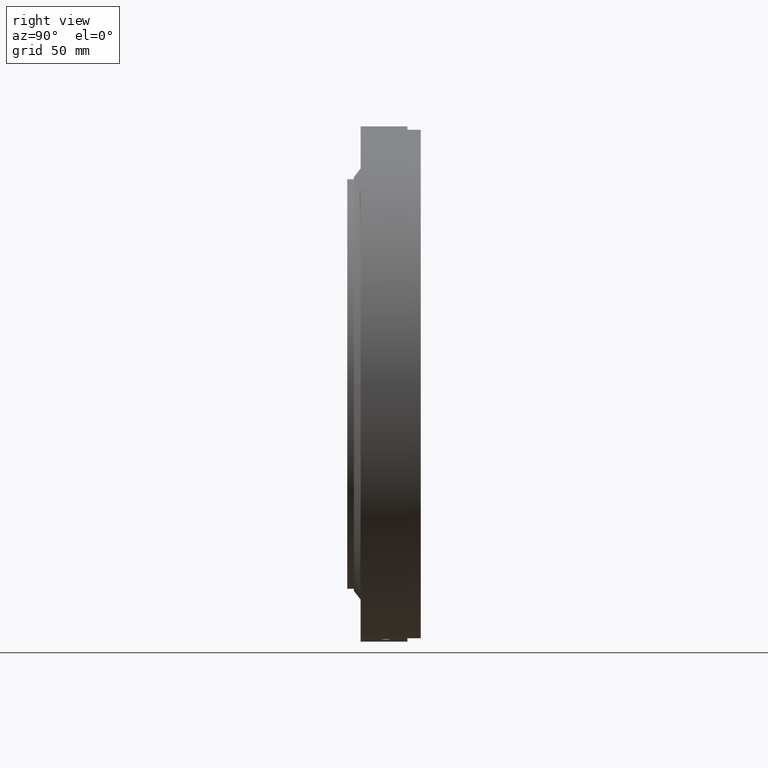
[diagram: clean part render]
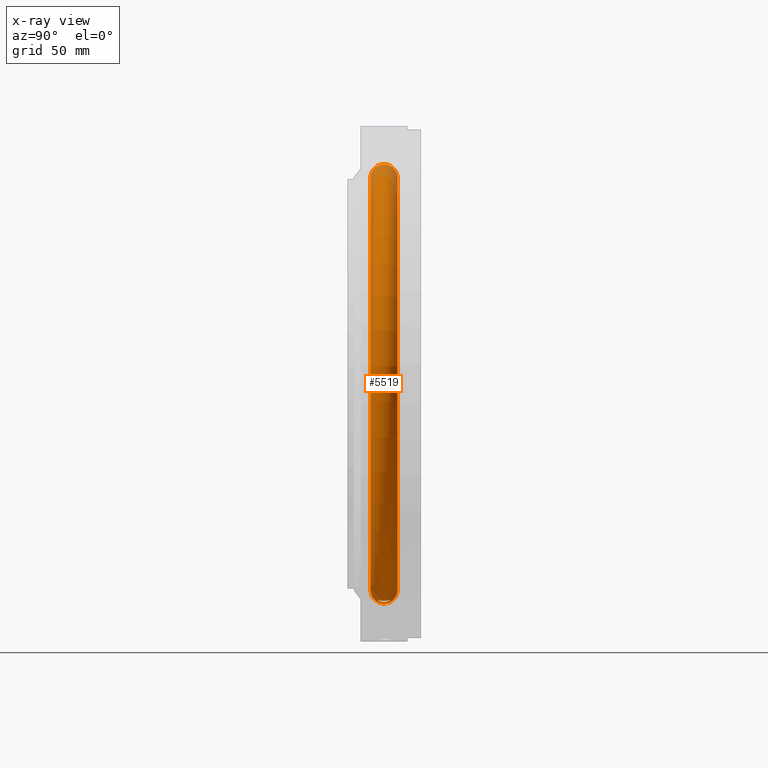
[diagram: x-ray — body ghosted, one internal face saturated and labeled with its STEP entity id]
A machine part, right view, then the same camera in x-ray: the body is ghosted and one INTERNAL B-rep face — a face not visible from any outside direction — is saturated and labeled: STEP entity #5519.
In plain terms, the highlighted toroidal blend (fillet) surface has major radius 154 mm and minor (blend) radius 10.125 mm.
Its self-contained STEP definition (entity closure, byte-faithful):
#285 = CARTESIAN_POINT ( 'NONE',  ( 25.87605939719990600, -0.2985636988969406800, -162.0723454974608400 ) ) ;
#996 = ORIENTED_EDGE ( 'NONE', *, *, #4820, .F. ) ;
#1200 = CARTESIAN_POINT ( 'NONE',  ( -1.182411667298308500E-015, 10.07424780070452500, 3.520161150767881700E-016 ) ) ;
#1833 = CARTESIAN_POINT ( 'NONE',  ( 16.95305564484528900, -2.490218217154930500E-009, -163.2470812275146800 ) ) ;
#1907 = CARTESIAN_POINT ( 'NONE',  ( -2.740827799648294300E-014, 5.381094727294103700E-015, -154.0000000000000000 ) ) ;
#1924 = ORIENTED_EDGE ( 'NONE', *, *, #8764, .F. ) ;
#2009 = CARTESIAN_POINT ( 'NONE',  ( 24.29488034255972200, -3.386912761860605400, -161.7296974445217200 ) ) ;
#2139 = EDGE_CURVE ( 'NONE', #16674, #15334, #10465, .T. ) ;
#2168 = AXIS2_PLACEMENT_3D ( 'NONE', #1200, #4241, #5100 ) ;
#2647 = CARTESIAN_POINT ( 'NONE',  ( 17.06286809722527700, -1.030836467049970600, -163.1838155458609400 ) ) ;
#2687 = CARTESIAN_POINT ( 'NONE',  ( 9.787333997533663200E-015, -10.07424780070453200, 155.0124999999999900 ) ) ;
#2693 = ORIENTED_EDGE ( 'NONE', *, *, #5965, .T. ) ;
#2900 = CARTESIAN_POINT ( 'NONE',  ( -2.758847852551826400E-014, -10.07424780070452100, -155.0124999999999900 ) ) ;
#3427 = CARTESIAN_POINT ( 'NONE',  ( 20.98511815232262700, -4.499910478885521300, -161.7144640029901300 ) ) ;
#3665 = CARTESIAN_POINT ( 'NONE',  ( 17.22627264879800200, -1.599160475621156400, -163.0916473051969100 ) ) ;
#3914 = CARTESIAN_POINT ( 'NONE',  ( 23.56296480472796200, -3.900347213197203000, -161.6370007688691100 ) ) ;
#4060 = CARTESIAN_POINT ( 'NONE',  ( 25.87605939720957300, -2.506746963913570900E-009, -162.0723454975341700 ) ) ;
#4079 = CARTESIAN_POINT ( 'NONE',  ( 25.72345742633690000, -1.174981209259698300, -162.0316729129656000 ) ) ;
#4241 = DIRECTION ( 'NONE',  ( 1.173697223544192200E-016, -1.000000000000000000, -3.494217355385783800E-017 ) ) ;
#4392 = CARTESIAN_POINT ( 'NONE',  ( 17.09748395767530800, -1.176673295688014200, -163.1640664003225500 ) ) ;
#4624 = CARTESIAN_POINT ( 'NONE',  ( 25.87605939721440500, 0.1492238133196937300, -162.0723454975708400 ) ) ;
#4636 = CARTESIAN_POINT ( 'NONE',  ( 20.12947164134699200, -4.346494329589879700, -161.8981901464832700 ) ) ;
#4762 = CARTESIAN_POINT ( 'NONE',  ( 17.17915245734804900, -1.460493076982188200, -163.1180023496384600 ) ) ;
#4820 = EDGE_CURVE ( 'NONE', #16674, #11333, #17006, .T. ) ;
#5006 = CARTESIAN_POINT ( 'NONE',  ( 16.98050067026604300, -0.5929083849119604100, -163.2310412415883400 ) ) ;
#5020 = CARTESIAN_POINT ( 'NONE',  ( 0.0000000000000000000, -0.0000000000000000000, 0.0000000000000000000 ) ) ;
#5078 = CARTESIAN_POINT ( 'NONE',  ( 21.87686209752731900, -4.470277461980961300, -161.6112313221221700 ) ) ;
#5100 = DIRECTION ( 'NONE',  ( 5.551115123125782700E-017, -3.357258561684007100E-017, 1.000000000000000000 ) ) ;
#5133 = CARTESIAN_POINT ( 'NONE',  ( 25.25136311684124000, -2.262074366697306000, -161.9151594362679100 ) ) ;
#5148 = CARTESIAN_POINT ( 'NONE',  ( 21.58205706642593600, -4.500089129923970300, -161.6357910759811300 ) ) ;
#5155 = CARTESIAN_POINT ( 'NONE',  ( 25.81380506178362200, 0.7444255377757166300, -162.0555897069715500 ) ) ;
#5175 = CARTESIAN_POINT ( 'NONE',  ( 25.84527613078836700, -0.5932326999813676300, -162.0639236970967800 ) ) ;
#5279 = CARTESIAN_POINT ( 'NONE',  ( 25.83699654909763400, 0.5975891206934413900, -162.0618137411020400 ) ) ;
#5312 = CARTESIAN_POINT ( 'NONE',  ( 25.39200746297243000, 2.011602077555792300, -161.9485492642412200 ) ) ;
#5470 = DIRECTION ( 'NONE',  ( 5.551115123125782700E-017, -3.494217355385783100E-017, 1.000000000000000000 ) ) ;
#5519 = ADVANCED_FACE ( 'NONE', ( #17157, #13988 ), #10406, .F. ) ;
#5792 = CARTESIAN_POINT ( 'NONE',  ( 17.51822200637467800, -2.266556568081994300, -162.9322720971586300 ) ) ;
#5965 = EDGE_CURVE ( 'NONE', #15334, #10200, #16090, .T. ) ;
#6344 = ORIENTED_EDGE ( 'NONE', *, *, #2139, .T. ) ;
#6663 = CARTESIAN_POINT ( 'NONE',  ( 24.71825293885289200, -2.976669158166189700, -161.8029076953275200 ) ) ;
#6682 = B_SPLINE_CURVE_WITH_KNOTS ( 'NONE', 3,
 ( #1833, #13722, #5006, #2647, #4392, #4762, #3665, #6806, #5792, #9905, #7931, #14365, #14097, #16640, #12006, #13624, #12960, #4636, #14370, #7300, #3427, #5148, #5078, #14494, #14464, #14017, #3914, #11696, #2009, #6663, #12919, #5133, #8687, #15506, #4079, #5175, #285, #4060 ),
 .UNSPECIFIED., .F., .F.,
 ( 4, 2, 2, 2, 2, 2, 2, 2, 2, 2, 2, 2, 2, 2, 2, 2, 2, 2, 4 ),
 ( 0.01080634631578504900, 0.01169607692530901300, 0.01214094223007099900, 0.01258580753483298400, 0.01347553814435693500, 0.01436526875388088500, 0.01525499936340483600, 0.01614472997292878600, 0.01658959527769076500, 0.01703446058245274400, 0.01792419119197669400, 0.01881392180150064400, 0.01970365241102459500, 0.02059338302054854500, 0.02148311363007249200, 0.02237284423959644600, 0.02326257484912039700, 0.02415230545864434700, 0.02504203606816829800 ),
 .UNSPECIFIED. ) ;
#6806 = CARTESIAN_POINT ( 'NONE',  ( 17.38604608230626500, -2.005828942567127600, -163.0036001129518300 ) ) ;
#7093 = CARTESIAN_POINT ( 'NONE',  ( 16.95305564484528900, -2.490218217154930500E-009, -163.2470812275146800 ) ) ;
#7300 = CARTESIAN_POINT ( 'NONE',  ( 20.69395267895242400, -4.469836906715329400, -161.7671698362692900 ) ) ;
#7839 = CIRCLE ( 'NONE', #15675, 10.12499999999999800 ) ;
#7900 = AXIS2_PLACEMENT_3D ( 'NONE', #8096, #10257, #10238 ) ;
#7931 = CARTESIAN_POINT ( 'NONE',  ( 18.00264911365350100, -2.977903899250928800, -162.6866817634779400 ) ) ;
#8096 = CARTESIAN_POINT ( 'NONE',  ( 1.182411667298308700E-015, -10.07424780070452600, -3.520161150767882200E-016 ) ) ;
#8687 = CARTESIAN_POINT ( 'NONE',  ( 25.39520870186220900, -2.005003983624607900, -161.9493245740047200 ) ) ;
#8764 = EDGE_CURVE ( 'NONE', #11333, #10200, #7839, .T. ) ;
#8800 = EDGE_CURVE ( 'NONE', #8987, #12305, #6682, .T. ) ;
#8987 = VERTEX_POINT ( 'NONE', #7093 ) ;
#9289 = CARTESIAN_POINT ( 'NONE',  ( 8.548717289613705400E-015, -5.381094727294106100E-015, 154.0000000000000000 ) ) ;
#9905 = CARTESIAN_POINT ( 'NONE',  ( 17.82764347707782800, -2.753871851619472000, -162.7732513768679000 ) ) ;
#10150 = EDGE_LOOP ( 'NONE', ( #996, #6344, #2693, #1924 ) ) ;
#10200 = VERTEX_POINT ( 'NONE', #2687 ) ;
#10238 = DIRECTION ( 'NONE',  ( 5.551115123125782700E-017, -3.357258561684007100E-017, 1.000000000000000000 ) ) ;
#10257 = DIRECTION ( 'NONE',  ( 1.173697223544192200E-016, -1.000000000000000000, -3.494217355385783800E-017 ) ) ;
#10406 = TOROIDAL_SURFACE ( 'NONE', #16680, 154.0000000000000000, 10.12499999999999800 ) ;
#10465 = CIRCLE ( 'NONE', #12097, 10.12499999999999500 ) ;
#10491 = CARTESIAN_POINT ( 'NONE',  ( 19.07054636527337300, 3.897677714221700700, -162.2294745121159000 ) ) ;
#10876 = DIRECTION ( 'NONE',  ( -1.173697223544191400E-016, 1.000000000000000000, 0.0000000000000000000 ) ) ;
#11062 = EDGE_CURVE ( 'NONE', #12305, #8987, #12958, .T. ) ;
#11268 = CARTESIAN_POINT ( 'NONE',  ( 25.87605939720957300, -2.506746963913570900E-009, -162.0723454975341700 ) ) ;
#11277 = DIRECTION ( 'NONE',  ( 1.173697223544192200E-016, -1.000000000000000000, -3.494217355385783800E-017 ) ) ;
#11333 = VERTEX_POINT ( 'NONE', #15096 ) ;
#11696 = CARTESIAN_POINT ( 'NONE',  ( 24.06244237525720900, -3.573124532905712900, -161.6947696468574500 ) ) ;
#11938 = CARTESIAN_POINT ( 'NONE',  ( 25.86816841580273500, 0.3002676704841263900, -162.0702038742973600 ) ) ;
#12006 = CARTESIAN_POINT ( 'NONE',  ( 19.32205919350263900, -4.038641065020975400, -162.1384795416508700 ) ) ;
#12097 = AXIS2_PLACEMENT_3D ( 'NONE', #1907, #14561, #14604 ) ;
#12305 = VERTEX_POINT ( 'NONE', #11268 ) ;
#12429 = ORIENTED_EDGE ( 'NONE', *, *, #11062, .F. ) ;
#12919 = CARTESIAN_POINT ( 'NONE',  ( 24.91215600653698900, -2.749441724439066500, -161.8417441383665800 ) ) ;
#12958 = B_SPLINE_CURVE_WITH_KNOTS ( 'NONE', 3,
 ( #16243, #4624, #11938, #5279, #5155, #14951, #14931, #5312, #15026, #15011, #14969, #15075, #15051, #15034, #15193, #15177, #15091, #15232, #15218, #15139, #15394, #15328, #15291, #15449, #15439, #15419, #10491, #15781, #15672, #15648, #15845, #16116, #16100, #15984, #15903, #15879 ),
 .UNSPECIFIED., .F., .F.,
 ( 4, 2, 2, 2, 2, 2, 2, 2, 2, 2, 2, 2, 2, 2, 2, 2, 2, 4 ),
 ( 0.02504203606816829800, 0.02548672843437357200, 0.02593142080057884300, 0.02682080553298939200, 0.02771019026539993400, 0.02859957499781048300, 0.02948895973022102500, 0.03037834446263157400, 0.03126772919504211500, 0.03171242156124739300, 0.03215711392745266400, 0.03304649865986322000, 0.03393588339227377600, 0.03482526812468433200, 0.03571465285709488800, 0.03749342232191599900, 0.03838280705432654800, 0.03927219178673710400 ),
 .UNSPECIFIED. ) ;
#12960 = CARTESIAN_POINT ( 'NONE',  ( 19.85376694073979600, -4.259888414951867700, -161.9731990771021800 ) ) ;
#13257 = CARTESIAN_POINT ( 'NONE',  ( -2.758847852551826400E-014, 10.07424780070453000, -155.0124999999999900 ) ) ;
#13624 = CARTESIAN_POINT ( 'NONE',  ( 19.71717367664090000, -4.209093542430546000, -162.0135251167966100 ) ) ;
#13722 = CARTESIAN_POINT ( 'NONE',  ( 16.95305564483465200, -0.2979637154538293800, -163.2470812274421200 ) ) ;
#13988 = FACE_OUTER_BOUND ( 'NONE', #10150, .T. ) ;
#14017 = CARTESIAN_POINT ( 'NONE',  ( 23.30049738796054000, -4.038764909264682700, -161.6146535320241100 ) ) ;
#14097 = CARTESIAN_POINT ( 'NONE',  ( 18.61188037610563500, -3.576702248812968900, -162.4110349161690900 ) ) ;
#14112 = DIRECTION ( 'NONE',  ( 1.000000000000000000, 1.173697223544192200E-016, -5.551115123125782100E-017 ) ) ;
#14365 = CARTESIAN_POINT ( 'NONE',  ( 18.39374823169928400, -3.388883323538455400, -162.5059403956706200 ) ) ;
#14370 = CARTESIAN_POINT ( 'NONE',  ( 20.26917555082346200, -4.382634408334494600, -161.8632929739407300 ) ) ;
#14464 = CARTESIAN_POINT ( 'NONE',  ( 22.74979383714757800, -4.265548583953341600, -161.5901176758527800 ) ) ;
#14494 = CARTESIAN_POINT ( 'NONE',  ( 22.45937961927208400, -4.353767526061695900, -161.5882571362827200 ) ) ;
#14561 = DIRECTION ( 'NONE',  ( -1.000000000000000000, -1.173697223544192200E-016, 1.779758311459931500E-016 ) ) ;
#14604 = DIRECTION ( 'NONE',  ( 1.779758311459931000E-016, 0.0000000000000000000, 1.000000000000000000 ) ) ;
#14704 = EDGE_LOOP ( 'NONE', ( #15339, #12429 ) ) ;
#14931 = CARTESIAN_POINT ( 'NONE',  ( 25.63069740426204700, 1.464854036094066100, -162.0074089079277000 ) ) ;
#14951 = CARTESIAN_POINT ( 'NONE',  ( 25.72209290500561400, 1.179642488014845500, -162.0313162105166800 ) ) ;
#14969 = CARTESIAN_POINT ( 'NONE',  ( 24.71274863082285500, 2.982917199917499900, -161.8018311635107400 ) ) ;
#15011 = CARTESIAN_POINT ( 'NONE',  ( 24.90856957329347000, 2.753805000237267400, -161.8410166294297600 ) ) ;
#15026 = CARTESIAN_POINT ( 'NONE',  ( 25.24710684516778900, 2.268961250664133900, -161.9141906501770600 ) ) ;
#15034 = CARTESIAN_POINT ( 'NONE',  ( 23.55982760412637200, 3.901908360057204200, -161.6367557126617100 ) ) ;
#15051 = CARTESIAN_POINT ( 'NONE',  ( 24.05466355020084600, 3.578704004724772200, -161.6937547443801000 ) ) ;
#15075 = CARTESIAN_POINT ( 'NONE',  ( 24.28531057590955200, 3.395238465872463700, -161.7281718235472000 ) ) ;
#15091 = CARTESIAN_POINT ( 'NONE',  ( 22.45963222714683000, 4.353740249234932400, -161.5882369787642900 ) ) ;
#15096 = CARTESIAN_POINT ( 'NONE',  ( 7.422510662937045000E-015, 10.07424780070451900, 155.0124999999999900 ) ) ;
#15139 = CARTESIAN_POINT ( 'NONE',  ( 21.57618483643846500, 4.492912348433705500, -161.6399666925502700 ) ) ;
#15177 = CARTESIAN_POINT ( 'NONE',  ( 22.74282743611933500, 4.267853444741166200, -161.5900045458523100 ) ) ;
#15193 = CARTESIAN_POINT ( 'NONE',  ( 23.29243425543173300, 4.042634089829753000, -161.6141023662670500 ) ) ;
#15218 = CARTESIAN_POINT ( 'NONE',  ( 21.87274158421666900, 4.463566922537164100, -161.6147082275903700 ) ) ;
#15232 = CARTESIAN_POINT ( 'NONE',  ( 22.02184867625156200, 4.441266893703521600, -161.6055182374585700 ) ) ;
#15291 = CARTESIAN_POINT ( 'NONE',  ( 20.69595039908374900, 4.470395877201020200, -161.7666524454638500 ) ) ;
#15328 = CARTESIAN_POINT ( 'NONE',  ( 20.98793159674927700, 4.499786425198789400, -161.7141522322076800 ) ) ;
#15334 = VERTEX_POINT ( 'NONE', #2900 ) ;
#15339 = ORIENTED_EDGE ( 'NONE', *, *, #8800, .F. ) ;
#15394 = CARTESIAN_POINT ( 'NONE',  ( 21.42860421911850100, 4.500105049468740700, -161.6559860033821100 ) ) ;
#15419 = CARTESIAN_POINT ( 'NONE',  ( 19.32264716884763800, 4.038854965593603000, -162.1383075977494500 ) ) ;
#15439 = CARTESIAN_POINT ( 'NONE',  ( 19.84730632398628800, 4.265272463341946500, -161.9723568701333500 ) ) ;
#15449 = CARTESIAN_POINT ( 'NONE',  ( 20.12140377895071500, 4.352148384719566100, -161.8967981673248200 ) ) ;
#15506 = CARTESIAN_POINT ( 'NONE',  ( 25.63104388595132100, -1.463314535251454100, -162.0075086588148600 ) ) ;
#15648 = CARTESIAN_POINT ( 'NONE',  ( 17.80337525091491500, 2.768070150248729300, -162.7788348518840800 ) ) ;
#15672 = CARTESIAN_POINT ( 'NONE',  ( 18.39329645058607500, 3.388622516176411200, -162.5061187299211000 ) ) ;
#15675 = AXIS2_PLACEMENT_3D ( 'NONE', #9289, #14112, #10876 ) ;
#15781 = CARTESIAN_POINT ( 'NONE',  ( 18.60707975672199400, 3.572864202891101700, -162.4130518812855500 ) ) ;
#15845 = CARTESIAN_POINT ( 'NONE',  ( 17.49363966092416300, 2.280235851757185900, -162.9442964247342300 ) ) ;
#15879 = CARTESIAN_POINT ( 'NONE',  ( 16.95305564484528900, -2.490218217154930500E-009, -163.2470812275146800 ) ) ;
#15903 = CARTESIAN_POINT ( 'NONE',  ( 16.95305564485592200, 0.2978478789758243200, -163.2470812275872200 ) ) ;
#15984 = CARTESIAN_POINT ( 'NONE',  ( 16.98145461225406500, 0.5993131921042602600, -163.2304906672309000 ) ) ;
#16090 = CIRCLE ( 'NONE', #7900, 155.0124999999999900 ) ;
#16100 = CARTESIAN_POINT ( 'NONE',  ( 17.09085383764112700, 1.178278836021885200, -163.1677734873365800 ) ) ;
#16116 = CARTESIAN_POINT ( 'NONE',  ( 17.17160405485528700, 1.459736904741995900, -163.1217796041257500 ) ) ;
#16243 = CARTESIAN_POINT ( 'NONE',  ( 25.87605939720957300, -2.506746963913570900E-009, -162.0723454975341700 ) ) ;
#16640 = CARTESIAN_POINT ( 'NONE',  ( 19.07531948309711100, -3.900539396078215800, -162.2277017619076100 ) ) ;
#16674 = VERTEX_POINT ( 'NONE', #13257 ) ;
#16680 = AXIS2_PLACEMENT_3D ( 'NONE', #5020, #11277, #5470 ) ;
#17006 = CIRCLE ( 'NONE', #2168, 155.0124999999999900 ) ;
#17157 = FACE_BOUND ( 'NONE', #14704, .T. ) ;